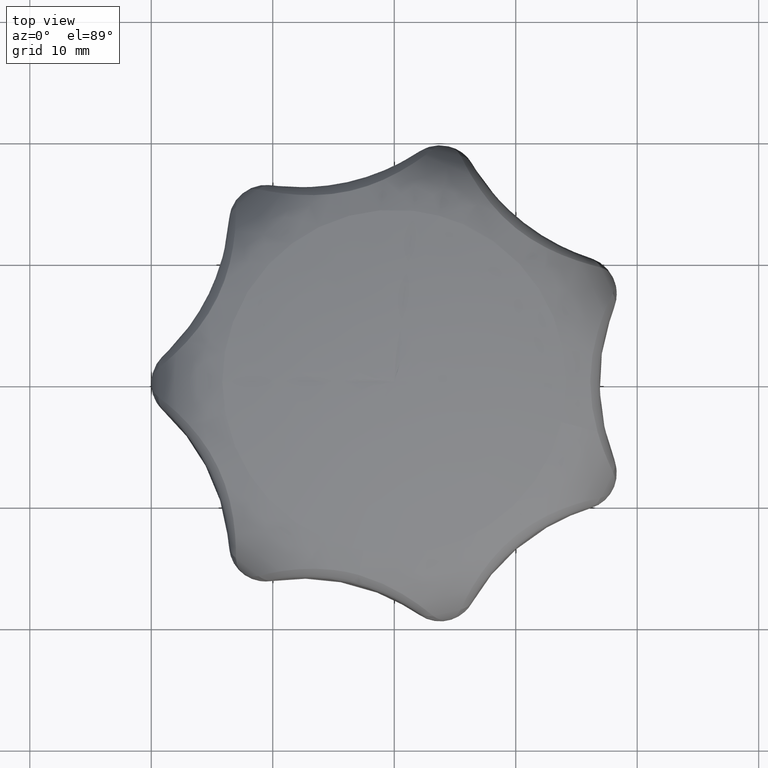
[diagram: clean part render]
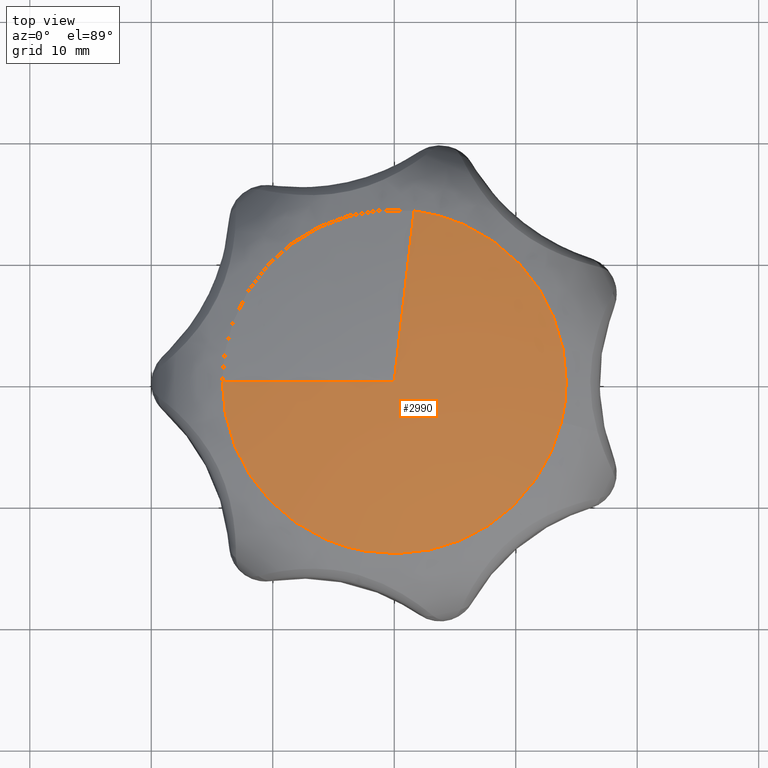
[diagram: same view with one face highlighted and labeled with its STEP entity id]
A machine part, top view. The second image highlights one B-rep face of the part: STEP entity #2990.
In plain terms, the highlighted face is a freeform B-spline surface patch.
Its self-contained STEP definition (entity closure, byte-faithful):
#2003=CARTESIAN_POINT('',(-2.555872080191708,-13.924026211694240,23.484274901219809));
#2004=VERTEX_POINT('',#2003);
#2005=CARTESIAN_POINT('',(13.755059415906590,-3.348035727709375,23.484274579114441));
#2006=VERTEX_POINT('',#2005);
#2007=CARTESIAN_POINT('',(-2.555872080191707,-13.924026211694233,23.484274901219809));
#2008=CARTESIAN_POINT('',(-1.288522058761201,-14.156659255858118,23.484275067383390));
#2009=CARTESIAN_POINT('',(0.000001978750909,-14.156659255858120,23.484275026593110));
#2010=CARTESIAN_POINT('',(11.124198166573278,-14.156659255858116,23.484274674438943));
#2011=CARTESIAN_POINT('',(13.755059415906590,-3.348035727709375,23.484274579114441));
#2019=(BOUNDED_CURVE()B_SPLINE_CURVE(2,(#2007,#2008,#2009,#2010,#2011),.UNSPECIFIED.,.F.,.U.)B_SPLINE_CURVE_WITH_KNOTS((3,2,3),(0.218989093635942,0.250000000000000,0.459598322152084),.UNSPECIFIED.)CURVE()GEOMETRIC_REPRESENTATION_ITEM()RATIONAL_B_SPLINE_CURVE((0.936350317603224,0.963668463266834,1.0,0.754440291067909,0.920631805978381))REPRESENTATION_ITEM(''));
#2020=EDGE_CURVE('',#2004,#2006,#2019,.T.);
#2298=CARTESIAN_POINT('',(-14.156655298356300,0.0,23.484275474744681));
#2299=VERTEX_POINT('',#2298);
#2300=CARTESIAN_POINT('',(-14.156655298356300,0.0,23.484275474744681));
#2301=CARTESIAN_POINT('',(-14.156655298356309,-11.794602719198927,23.484275474744685));
#2302=CARTESIAN_POINT('',(-2.555872080191708,-13.924026211694237,23.484274901219816));
#2310=(BOUNDED_CURVE()B_SPLINE_CURVE(2,(#2300,#2301,#2302),.UNSPECIFIED.,.F.,.U.)B_SPLINE_CURVE_WITH_KNOTS((3,3),(0.0,0.218989093635942),.UNSPECIFIED.)CURVE()GEOMETRIC_REPRESENTATION_ITEM()RATIONAL_B_SPLINE_CURVE((1.0,0.743438317919714,0.936350317603224))REPRESENTATION_ITEM(''));
#2311=EDGE_CURVE('',#2299,#2004,#2310,.T.);
#2313=CARTESIAN_POINT('',(1.634552423069075,14.061897552732781,23.484292791448969));
#2314=VERTEX_POINT('',#2313);
#2330=CARTESIAN_POINT('',(14.156659255858120,0.0,23.484274578441550));
#2331=VERTEX_POINT('',#2330);
#2332=CARTESIAN_POINT('',(14.156659255858120,0.0,23.484274578441550));
#2333=CARTESIAN_POINT('',(14.156654613261113,12.606371143016760,23.484283684945257));
#2334=CARTESIAN_POINT('',(1.634552423069075,14.061897552732784,23.484292791448965));
#2342=(BOUNDED_CURVE()B_SPLINE_CURVE(2,(#2332,#2333,#2334),.UNSPECIFIED.,.F.,.U.)B_SPLINE_CURVE_WITH_KNOTS((3,3),(0.500000000000000,0.730000313272835),.UNSPECIFIED.)CURVE()GEOMETRIC_REPRESENTATION_ITEM()RATIONAL_B_SPLINE_CURVE((1.0,0.730537871669667,0.956886734788466))REPRESENTATION_ITEM(''));
#2343=EDGE_CURVE('',#2331,#2314,#2342,.T.);
#2345=CARTESIAN_POINT('',(13.755059415906594,-3.348035727709375,23.484274579114444));
#2346=CARTESIAN_POINT('',(14.156659255858116,-1.698103998237507,23.484274578441550));
#2347=CARTESIAN_POINT('',(14.156659255858120,0.0,23.484274578441550));
#2355=(BOUNDED_CURVE()B_SPLINE_CURVE(2,(#2345,#2346,#2347),.UNSPECIFIED.,.F.,.U.)B_SPLINE_CURVE_WITH_KNOTS((3,3),(0.459598322152084,0.500000000000000),.UNSPECIFIED.)CURVE()GEOMETRIC_REPRESENTATION_ITEM()RATIONAL_B_SPLINE_CURVE((0.920631805978382,0.952666490118639,1.0))REPRESENTATION_ITEM(''));
#2356=EDGE_CURVE('',#2006,#2331,#2355,.T.);
#2927=CARTESIAN_POINT('',(1.716594946472738,14.767454876726807,23.318985372251955));
#2928=CARTESIAN_POINT('',(0.870195925212017,7.486086968789796,25.070855692663613));
#2929=CARTESIAN_POINT('',(1.777650E-015,1.361802E-014,25.000000340533870));
#2930=CARTESIAN_POINT('',(14.866890116847509,13.238841420818023,23.318985372251959));
#2931=CARTESIAN_POINT('',(7.536493816924422,6.711184768774954,25.070855692663606));
#2932=CARTESIAN_POINT('',(1.539567E-014,0.0,25.000000340533866));
#2933=CARTESIAN_POINT('',(14.866890116847506,0.0,23.318985372251969));
#2934=CARTESIAN_POINT('',(7.536493816924422,0.0,25.070855692663606));
#2935=CARTESIAN_POINT('',(1.539567E-014,0.0,25.000000340533870));
#2936=CARTESIAN_POINT('',(14.866890116847490,-14.866890116847500,23.318985372251955));
#2937=CARTESIAN_POINT('',(7.536493816924410,-7.536493816924422,25.070855692663606));
#2938=CARTESIAN_POINT('',(0.0,-1.539567E-014,25.000000340533862));
#2939=CARTESIAN_POINT('',(0.0,-14.866890116847506,23.318985372251969));
#2940=CARTESIAN_POINT('',(0.0,-7.536493816924422,25.070855692663606));
#2941=CARTESIAN_POINT('',(0.0,-1.539567E-014,25.000000340533870));
#2942=CARTESIAN_POINT('',(-14.866890116847500,-14.866890116847490,23.318985372251955));
#2943=CARTESIAN_POINT('',(-7.536493816924422,-7.536493816924410,25.070855692663606));
#2944=CARTESIAN_POINT('',(-1.539567E-014,0.0,25.000000340533862));
#2945=CARTESIAN_POINT('',(-14.866890116847506,0.0,23.318985372251969));
#2946=CARTESIAN_POINT('',(-7.536493816924422,0.0,25.070855692663606));
#2947=CARTESIAN_POINT('',(-1.539567E-014,0.0,25.000000340533870));
#2955=(BOUNDED_SURFACE()B_SPLINE_SURFACE(2,2,((#2927,#2930,#2933,#2936,#2939,#2942,#2945),(#2928,#2931,#2934,#2937,#2940,#2943,#2946),(#2929,#2932,#2935,#2938,#2941,#2944,#2947)),.UNSPECIFIED.,.F.,.F.,.U.)B_SPLINE_SURFACE_WITH_KNOTS((3,3),(3,2,2,3),(0.921306894546747,1.0),(0.270000010728836,0.500000000000000,0.750000000000000,1.0),.UNSPECIFIED.)GEOMETRIC_REPRESENTATION_ITEM()RATIONAL_B_SPLINE_SURFACE(((0.910103716532069,0.694822068765490,0.951109770865406,0.672536168631712,0.951109770865406,0.672536168631712,0.951109770865406),(0.926266177006412,0.707161359353066,0.968000454640381,0.684479685667875,0.968000454640381,0.684479685667875,0.968000454640381),(0.956886097073711,0.730538251261237,1.0,0.707106781186548,1.0,0.707106781186548,1.0)))REPRESENTATION_ITEM('')SURFACE());
#2956=ORIENTED_EDGE('',*,*,#2343,.T.);
#2957=CARTESIAN_POINT('',(-4.632923E-015,7.425573E-015,25.000000340533870));
#2958=VERTEX_POINT('',#2957);
#2959=CARTESIAN_POINT('',(1.634552423069074,14.061897552732782,23.484292791448969));
#2960=CARTESIAN_POINT('',(0.827478100504168,7.118713230433150,25.067378507999649));
#2961=CARTESIAN_POINT('',(-4.632923E-015,7.425573E-015,25.000000340533859));
#2969=(BOUNDED_CURVE()B_SPLINE_CURVE(2,(#2959,#2960,#2961),.UNSPECIFIED.,.F.,.U.)B_SPLINE_CURVE_WITH_KNOTS((3,3),(0.925051015502926,1.0),.UNSPECIFIED.)CURVE()GEOMETRIC_REPRESENTATION_ITEM()RATIONAL_B_SPLINE_CURVE((0.911674444461200,0.927723055532847,0.956886118190660))REPRESENTATION_ITEM(''));
#2970=EDGE_CURVE('',#2314,#2958,#2969,.T.);
#2971=ORIENTED_EDGE('',*,*,#2970,.T.);
#2972=CARTESIAN_POINT('',(-14.156655298356302,0.0,23.484275474744681));
#2973=CARTESIAN_POINT('',(-7.166684555386967,0.0,25.067378881551750));
#2974=CARTESIAN_POINT('',(-1.539567E-014,0.0,25.000000340533870));
#2982=(BOUNDED_CURVE()B_SPLINE_CURVE(2,(#2972,#2973,#2974),.UNSPECIFIED.,.F.,.U.)B_SPLINE_CURVE_WITH_KNOTS((3,3),(0.925050612676142,1.0),.UNSPECIFIED.)CURVE()GEOMETRIC_REPRESENTATION_ITEM()RATIONAL_B_SPLINE_CURVE((0.952751068928809,0.969522789759896,1.0))REPRESENTATION_ITEM(''));
#2983=EDGE_CURVE('',#2299,#2958,#2982,.T.);
#2984=ORIENTED_EDGE('',*,*,#2983,.F.);
#2985=ORIENTED_EDGE('',*,*,#2311,.T.);
#2986=ORIENTED_EDGE('',*,*,#2020,.T.);
#2987=ORIENTED_EDGE('',*,*,#2356,.T.);
#2988=EDGE_LOOP('',(#2956,#2971,#2984,#2985,#2986,#2987));
#2989=FACE_OUTER_BOUND('',#2988,.T.);
#2990=ADVANCED_FACE('',(#2989),#2955,.T.);